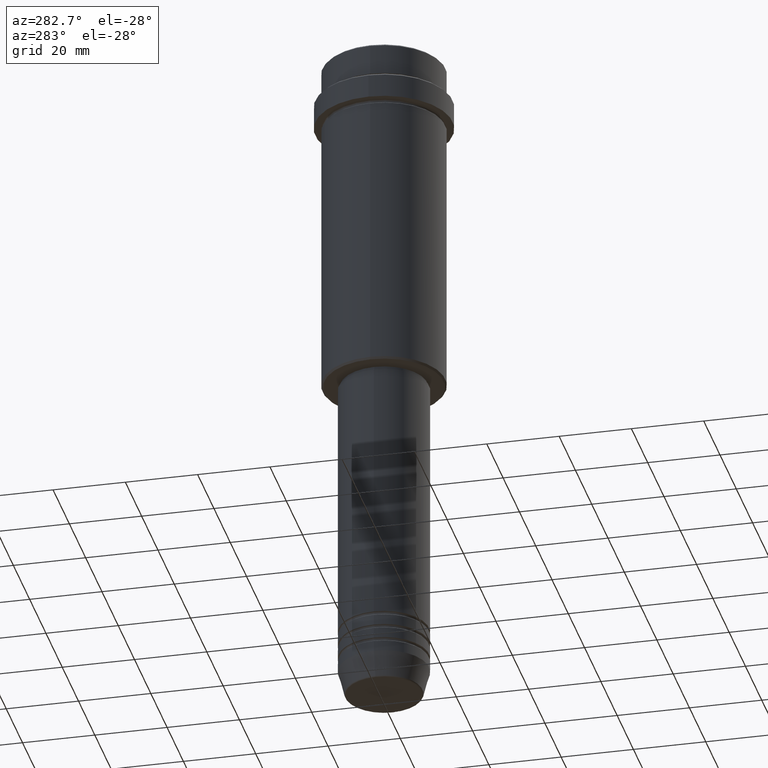
[diagram: clean part render]
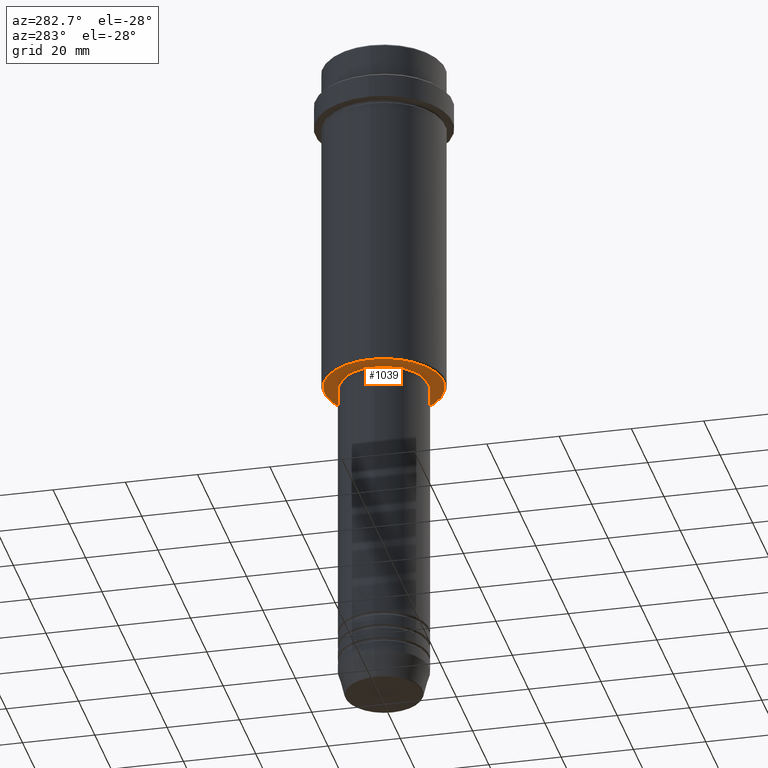
[diagram: same view with one face highlighted and labeled with its STEP entity id]
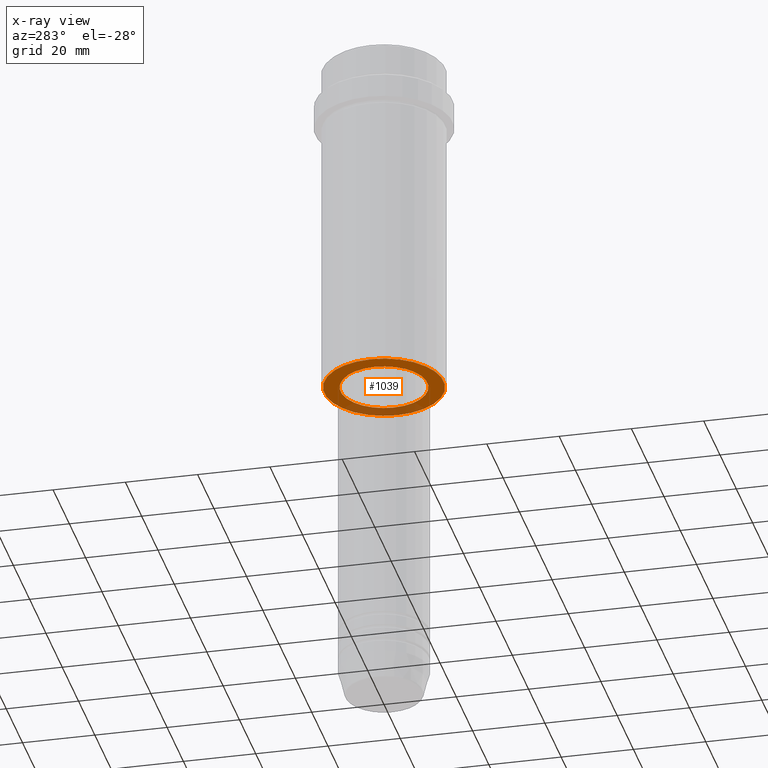
[diagram: x-ray of the same camera — body ghosted, the highlighted face saturated]
A machine part, auxiliary view. The second image highlights one B-rep face of the part: STEP entity #1039.
The next image is the same camera in x-ray: the body ghosted, the highlighted face saturated — about 23% of this face is hidden behind the body in this view.
In plain terms, the highlighted planar face has unit normal (0, 0, -1).
Its self-contained STEP definition (entity closure, byte-faithful):
#55 = CIRCLE ( 'NONE', #167, 16.50000000000004263 ) ;
#71 = VERTEX_POINT ( 'NONE', #1323 ) ;
#79 = EDGE_CURVE ( 'NONE', #165, #391, #462, .T. ) ;
#95 = CARTESIAN_POINT ( 'NONE',  ( 0.000000000000000000, 17.00000000000000000, -95.99999999999998579 ) ) ;
#119 = AXIS2_PLACEMENT_3D ( 'NONE', #485, #358, #1029 ) ;
#128 = FACE_BOUND ( 'NONE', #526, .T. ) ;
#135 = CARTESIAN_POINT ( 'NONE',  ( 0.000000000000000000, 0.000000000000000000, -95.99999999999998579 ) ) ;
#142 = CARTESIAN_POINT ( 'NONE',  ( 11.99999999999999289, 0.000000000000000000, -95.99999999999998579 ) ) ;
#165 = VERTEX_POINT ( 'NONE', #142 ) ;
#167 = AXIS2_PLACEMENT_3D ( 'NONE', #1105, #335, #1124 ) ;
#241 = EDGE_CURVE ( 'NONE', #391, #165, #855, .T. ) ;
#308 = FACE_OUTER_BOUND ( 'NONE', #388, .T. ) ;
#334 = DIRECTION ( 'NONE',  ( 1.000000000000000000, 0.000000000000000000, 0.000000000000000000 ) ) ;
#335 = DIRECTION ( 'NONE',  ( 0.000000000000000000, 0.000000000000000000, -1.000000000000000000 ) ) ;
#358 = DIRECTION ( 'NONE',  ( -0.000000000000000000, -0.000000000000000000, 1.000000000000000000 ) ) ;
#388 = EDGE_LOOP ( 'NONE', ( #848, #1201 ) ) ;
#391 = VERTEX_POINT ( 'NONE', #428 ) ;
#428 = CARTESIAN_POINT ( 'NONE',  ( -11.99999999999999289, 1.469576158976823158E-15, -95.99999999999998579 ) ) ;
#437 = DIRECTION ( 'NONE',  ( 0.000000000000000000, 0.000000000000000000, -1.000000000000000000 ) ) ;
#462 = CIRCLE ( 'NONE', #1376, 11.99999999999999289 ) ;
#485 = CARTESIAN_POINT ( 'NONE',  ( 0.000000000000000000, 0.000000000000000000, -95.99999999999998579 ) ) ;
#512 = ORIENTED_EDGE ( 'NONE', *, *, #241, .T. ) ;
#526 = EDGE_LOOP ( 'NONE', ( #1110, #512 ) ) ;
#546 = EDGE_CURVE ( 'NONE', #71, #1153, #55, .T. ) ;
#549 = DIRECTION ( 'NONE',  ( -1.000000000000000000, 0.000000000000000000, 0.000000000000000000 ) ) ;
#572 = DIRECTION ( 'NONE',  ( -0.000000000000000000, -0.000000000000000000, 1.000000000000000000 ) ) ;
#769 = CARTESIAN_POINT ( 'NONE',  ( 0.000000000000000000, 0.000000000000000000, -95.99999999999998579 ) ) ;
#848 = ORIENTED_EDGE ( 'NONE', *, *, #1046, .T. ) ;
#855 = CIRCLE ( 'NONE', #119, 11.99999999999999289 ) ;
#867 = PLANE ( 'NONE',  #1143 ) ;
#891 = DIRECTION ( 'NONE',  ( -1.000000000000000000, 0.000000000000000000, -0.000000000000000000 ) ) ;
#1029 = DIRECTION ( 'NONE',  ( 1.000000000000000000, 0.000000000000000000, 0.000000000000000000 ) ) ;
#1030 = CIRCLE ( 'NONE', #1336, 16.50000000000004263 ) ;
#1039 = ADVANCED_FACE ( 'NONE', ( #308, #128 ), #867, .T. ) ;
#1046 = EDGE_CURVE ( 'NONE', #1153, #71, #1030, .T. ) ;
#1105 = CARTESIAN_POINT ( 'NONE',  ( 0.000000000000000000, 0.000000000000000000, -95.99999999999998579 ) ) ;
#1110 = ORIENTED_EDGE ( 'NONE', *, *, #79, .T. ) ;
#1124 = DIRECTION ( 'NONE',  ( -1.000000000000000000, 0.000000000000000000, 0.000000000000000000 ) ) ;
#1143 = AXIS2_PLACEMENT_3D ( 'NONE', #95, #437, #891 ) ;
#1153 = VERTEX_POINT ( 'NONE', #1409 ) ;
#1198 = DIRECTION ( 'NONE',  ( 0.000000000000000000, 0.000000000000000000, -1.000000000000000000 ) ) ;
#1201 = ORIENTED_EDGE ( 'NONE', *, *, #546, .T. ) ;
#1323 = CARTESIAN_POINT ( 'NONE',  ( -16.50000000000004263, 2.051283388571818465E-15, -95.99999999999998579 ) ) ;
#1336 = AXIS2_PLACEMENT_3D ( 'NONE', #769, #1198, #549 ) ;
#1376 = AXIS2_PLACEMENT_3D ( 'NONE', #135, #572, #334 ) ;
#1409 = CARTESIAN_POINT ( 'NONE',  ( 16.50000000000004263, 0.000000000000000000, -95.99999999999998579 ) ) ;